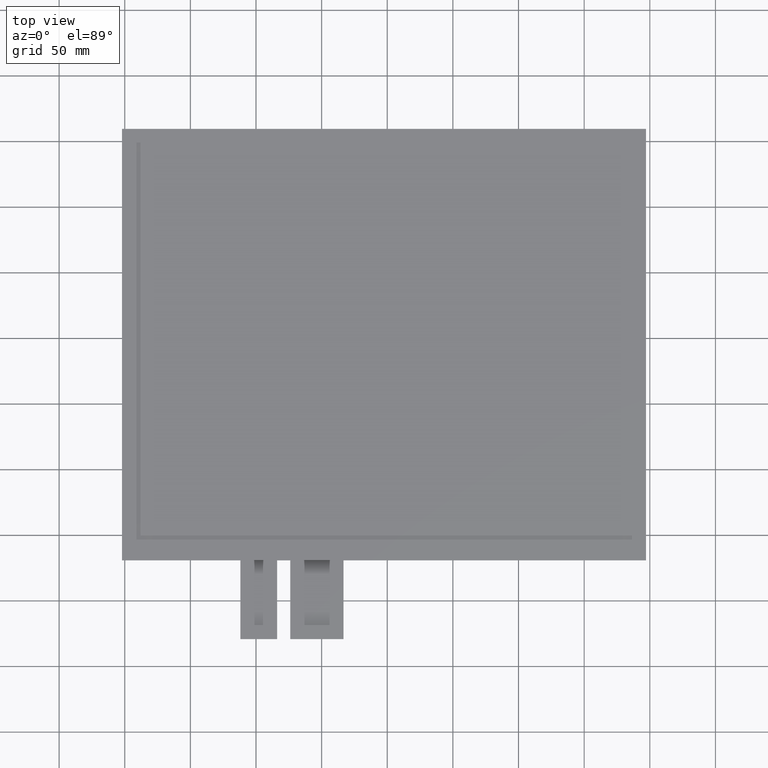
[diagram: clean part render]
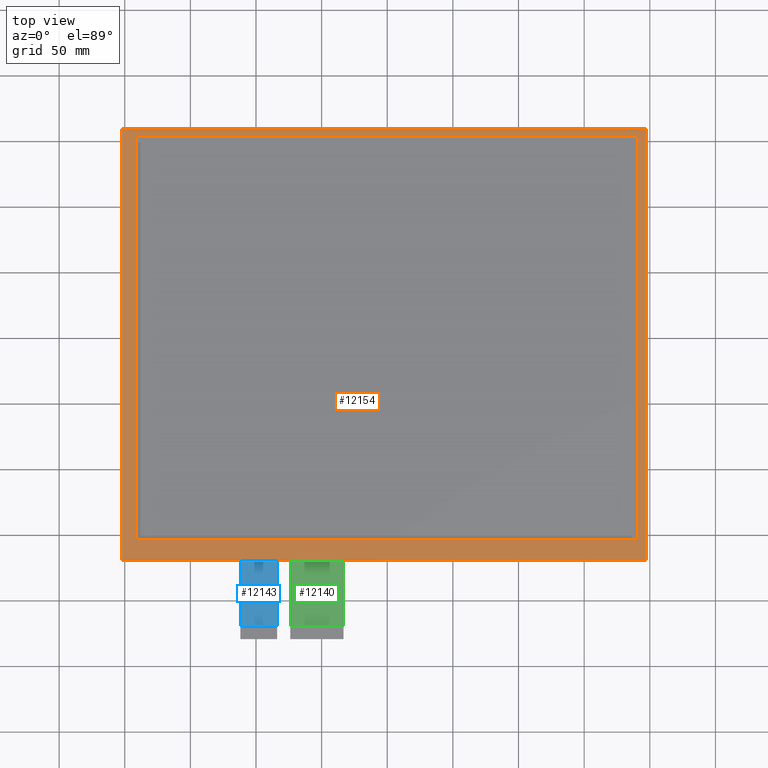
[diagram: same view with three faces highlighted in distinct colors, each labeled with its STEP entity id]
A machine part, top view with three faces highlighted in distinct colors.
Their STEP definitions:

[orange] entity #12154 — the highlighted planar face has unit normal (0, 0, 1).
#126=FACE_BOUND('',#1854,.T.);
#696=PLANE('',#12760);
#1274=FACE_OUTER_BOUND('',#1853,.T.);
#1853=EDGE_LOOP('',(#11539,#11540,#11541,#11542));
#1854=EDGE_LOOP('',(#11543,#11544,#11545,#11546));
#3547=LINE('',#19039,#5255);
#3551=LINE('',#19047,#5259);
#3554=LINE('',#19053,#5262);
#3557=LINE('',#19058,#5265);
#3559=LINE('',#19064,#5267);
#3560=LINE('',#19066,#5268);
#3561=LINE('',#19068,#5269);
#3562=LINE('',#19069,#5270);
#5255=VECTOR('',#15603,10.);
#5259=VECTOR('',#15609,10.);
#5262=VECTOR('',#15614,10.);
#5265=VECTOR('',#15619,10.);
#5267=VECTOR('',#15625,10.);
#5268=VECTOR('',#15626,10.);
#5269=VECTOR('',#15627,10.);
#5270=VECTOR('',#15628,10.);
#6415=VERTEX_POINT('',#19037);
#6416=VERTEX_POINT('',#19038);
#6419=VERTEX_POINT('',#19046);
#6421=VERTEX_POINT('',#19052);
#6423=VERTEX_POINT('',#19062);
#6424=VERTEX_POINT('',#19063);
#6425=VERTEX_POINT('',#19065);
#6426=VERTEX_POINT('',#19067);
#8123=EDGE_CURVE('',#6415,#6416,#3547,.T.);
#8127=EDGE_CURVE('',#6419,#6415,#3551,.T.);
#8130=EDGE_CURVE('',#6421,#6419,#3554,.T.);
#8133=EDGE_CURVE('',#6416,#6421,#3557,.T.);
#8135=EDGE_CURVE('',#6423,#6424,#3559,.T.);
#8136=EDGE_CURVE('',#6424,#6425,#3560,.T.);
#8137=EDGE_CURVE('',#6425,#6426,#3561,.T.);
#8138=EDGE_CURVE('',#6426,#6423,#3562,.T.);
#11539=ORIENTED_EDGE('',*,*,#8135,.T.);
#11540=ORIENTED_EDGE('',*,*,#8136,.T.);
#11541=ORIENTED_EDGE('',*,*,#8137,.T.);
#11542=ORIENTED_EDGE('',*,*,#8138,.T.);
#11543=ORIENTED_EDGE('',*,*,#8123,.T.);
#11544=ORIENTED_EDGE('',*,*,#8133,.T.);
#11545=ORIENTED_EDGE('',*,*,#8130,.T.);
#11546=ORIENTED_EDGE('',*,*,#8127,.T.);
#12154=ADVANCED_FACE('',(#1274,#126),#696,.T.);
#12760=AXIS2_PLACEMENT_3D('',#19061,#15623,#15624);
#15603=DIRECTION('',(-2.3144714519873E-16,1.,0.));
#15609=DIRECTION('',(-1.,-9.29543087074961E-17,0.));
#15614=DIRECTION('',(1.15723572599365E-16,-1.,0.));
#15619=DIRECTION('',(1.,0.,0.));
#15623=DIRECTION('center_axis',(0.,0.,1.));
#15624=DIRECTION('ref_axis',(1.,0.,0.));
#15625=DIRECTION('',(-1.,0.,0.));
#15626=DIRECTION('',(3.24152707919754E-16,-1.,0.));
#15627=DIRECTION('',(1.,0.,0.));
#15628=DIRECTION('',(0.,1.,0.));
#19037=CARTESIAN_POINT('',(-191.1,-153.55,0.));
#19038=CARTESIAN_POINT('',(-191.1,153.45,0.));
#19039=CARTESIAN_POINT('',(-191.1,-79.2,0.));
#19046=CARTESIAN_POINT('',(191.1,-153.55,0.));
#19047=CARTESIAN_POINT('',(94.3,-153.55,0.));
#19052=CARTESIAN_POINT('',(191.1,153.45,0.));
#19053=CARTESIAN_POINT('',(191.1,74.3000000000001,0.));
#19058=CARTESIAN_POINT('',(-96.8,153.45,0.));
#19061=CARTESIAN_POINT('Origin',(-2.50000000000002,-4.84999999999999,0.));
#19062=CARTESIAN_POINT('',(197.1,159.55,0.));
#19063=CARTESIAN_POINT('',(-202.1,159.55,0.));
#19064=CARTESIAN_POINT('',(197.1,159.55,0.));
#19065=CARTESIAN_POINT('',(-202.1,-169.25,0.));
#19066=CARTESIAN_POINT('',(-202.1,159.55,0.));
#19067=CARTESIAN_POINT('',(197.1,-169.25,0.));
#19068=CARTESIAN_POINT('',(-202.1,-169.25,0.));
#19069=CARTESIAN_POINT('',(197.1,-169.25,0.));

[blue] entity #12143 — the highlighted planar face has unit normal (0, 0, 1).
#685=PLANE('',#12749);
#1263=FACE_OUTER_BOUND('',#1841,.T.);
#1841=EDGE_LOOP('',(#11491,#11492,#11493,#11494));
#3506=LINE('',#18956,#5214);
#3521=LINE('',#18986,#5229);
#3532=LINE('',#19007,#5240);
#3533=LINE('',#19009,#5241);
#5214=VECTOR('',#15528,10.);
#5229=VECTOR('',#15553,10.);
#5240=VECTOR('',#15574,10.);
#5241=VECTOR('',#15577,10.);
#6390=VERTEX_POINT('',#18953);
#6391=VERTEX_POINT('',#18955);
#6401=VERTEX_POINT('',#18985);
#6406=VERTEX_POINT('',#19005);
#8082=EDGE_CURVE('',#6391,#6390,#3506,.T.);
#8097=EDGE_CURVE('',#6390,#6401,#3521,.T.);
#8108=EDGE_CURVE('',#6401,#6406,#3532,.T.);
#8109=EDGE_CURVE('',#6391,#6406,#3533,.T.);
#11491=ORIENTED_EDGE('',*,*,#8097,.T.);
#11492=ORIENTED_EDGE('',*,*,#8108,.T.);
#11493=ORIENTED_EDGE('',*,*,#8109,.F.);
#11494=ORIENTED_EDGE('',*,*,#8082,.T.);
#12143=ADVANCED_FACE('',(#1263),#685,.T.);
#12749=AXIS2_PLACEMENT_3D('',#19008,#15575,#15576);
#15528=DIRECTION('',(0.,-1.,0.));
#15553=DIRECTION('',(1.,0.,0.));
#15574=DIRECTION('',(-5.9211894646675E-16,1.,0.));
#15575=DIRECTION('center_axis',(0.,0.,1.));
#15576=DIRECTION('ref_axis',(1.,0.,0.));
#15577=DIRECTION('',(1.,0.,0.));
#18953=CARTESIAN_POINT('',(-111.9,-219.25,-1.1));
#18955=CARTESIAN_POINT('',(-111.9,-169.25,-1.1));
#18956=CARTESIAN_POINT('',(-111.9,-169.25,-1.1));
#18985=CARTESIAN_POINT('',(-83.8999999999999,-219.25,-1.1));
#18986=CARTESIAN_POINT('',(-90.8999999999999,-219.25,-1.1));
#19005=CARTESIAN_POINT('',(-83.8999999999999,-169.25,-1.1));
#19007=CARTESIAN_POINT('',(-83.8999999999999,-229.25,-1.1));
#19008=CARTESIAN_POINT('Origin',(-97.8999999999999,-199.25,-1.1));
#19009=CARTESIAN_POINT('',(49.6000000000001,-169.25,-1.1));

[green] entity #12140 — the highlighted planar face has unit normal (0, 0, 1).
#682=PLANE('',#12746);
#1260=FACE_OUTER_BOUND('',#1838,.T.);
#1838=EDGE_LOOP('',(#11475,#11476,#11477,#11478));
#3514=LINE('',#18972,#5222);
#3517=LINE('',#18978,#5225);
#3527=LINE('',#18997,#5235);
#3528=LINE('',#18999,#5236);
#5222=VECTOR('',#15540,10.);
#5225=VECTOR('',#15545,10.);
#5235=VECTOR('',#15563,10.);
#5236=VECTOR('',#15566,10.);
#6396=VERTEX_POINT('',#18969);
#6397=VERTEX_POINT('',#18971);
#6399=VERTEX_POINT('',#18977);
#6404=VERTEX_POINT('',#18995);
#8090=EDGE_CURVE('',#6397,#6396,#3514,.T.);
#8093=EDGE_CURVE('',#6396,#6399,#3517,.T.);
#8103=EDGE_CURVE('',#6399,#6404,#3527,.T.);
#8104=EDGE_CURVE('',#6397,#6404,#3528,.T.);
#11475=ORIENTED_EDGE('',*,*,#8093,.T.);
#11476=ORIENTED_EDGE('',*,*,#8103,.T.);
#11477=ORIENTED_EDGE('',*,*,#8104,.F.);
#11478=ORIENTED_EDGE('',*,*,#8090,.T.);
#12140=ADVANCED_FACE('',(#1260),#682,.T.);
#12746=AXIS2_PLACEMENT_3D('',#18998,#15564,#15565);
#15540=DIRECTION('',(4.44089209850063E-16,-1.,0.));
#15545=DIRECTION('',(1.,0.,0.));
#15563=DIRECTION('',(1.03620815631681E-15,1.,0.));
#15564=DIRECTION('center_axis',(0.,0.,1.));
#15565=DIRECTION('ref_axis',(1.,0.,0.));
#15566=DIRECTION('',(1.,0.,0.));
#18969=CARTESIAN_POINT('',(-73.8999999999999,-219.25,-1.1));
#18971=CARTESIAN_POINT('',(-73.8999999999999,-169.25,-1.1));
#18972=CARTESIAN_POINT('',(-73.8999999999999,-169.25,-1.1));
#18977=CARTESIAN_POINT('',(-33.3999999999999,-219.25,-1.1));
#18978=CARTESIAN_POINT('',(-43.5249999999999,-219.25,-1.1));
#18995=CARTESIAN_POINT('',(-33.3999999999999,-169.25,-1.1));
#18997=CARTESIAN_POINT('',(-33.3999999999999,-229.25,-1.1));
#18998=CARTESIAN_POINT('Origin',(-53.6499999999999,-199.25,-1.1));
#18999=CARTESIAN_POINT('',(71.7250000000001,-169.25,-1.1));